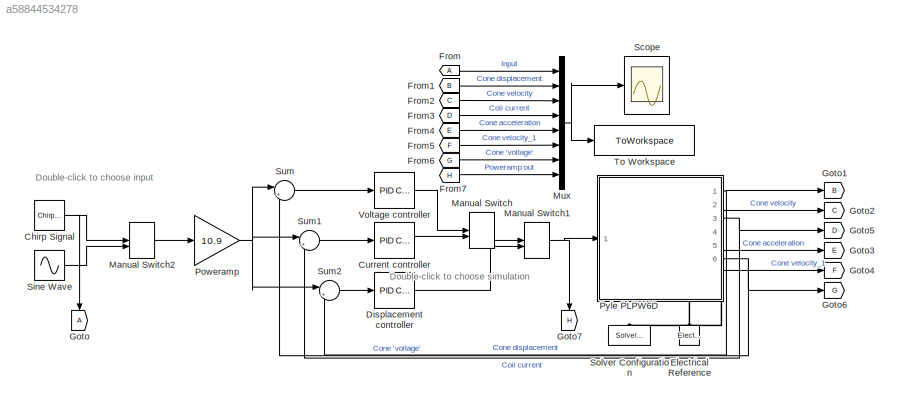
MODEL slx_a58844534278
KIND model
CONFIG AbsTol = auto
CONFIG EnableMultiTasking = off
CONFIG FixedStep = 0.000001
CONFIG MaxStep = auto
CONFIG MinStep = auto
CONFIG RelTol = 1e-3
CONFIG SampleTimeConstraint = Unconstrained
CONFIG Solver = FixedStepAuto
CONFIG SolverName = FixedStepAuto
CONFIG StartTime = 0.0
CONFIG StopTime = 1
BLOCK [Reference] Chirp Signal  REF=simulink/Sources/Chirp Signal
  Ports = [0, 1]
  SourceBlock = simulink/Sources/Chirp Signal
  SourceProductBaseCode = SL
  SourceType = chirp
BLOCK [Reference] Current controller  REF=simulink/Continuous/PID Controller
  Ports = [1, 1]
  SourceBlock = simulink/Continuous/PID Controller
  SourceProductBaseCode = SL
  SourceType = PID 1dof
BLOCK [Reference] Displacement controller  REF=simulink/Continuous/PID Controller
  Ports = [1, 1]
  SourceBlock = simulink/Continuous/PID Controller
  SourceProductBaseCode = SL
  SourceType = PID 1dof
BLOCK [Reference] Electrical Reference  REF=fl_lib/Electrical/Electrical Elements/Electrical Reference
  NameLocation = right
  Ports = [0, 0, 0, 0, 0, 1]
  SourceBlock = fl_lib/Electrical/Electrical Elements/Electrical Reference
  SourceProductBaseCode = MT,SS
  SourceType = Electrical Reference
BLOCK [From] From
BLOCK [From] From1
  GotoTag = B
BLOCK [From] From2
  GotoTag = C
BLOCK [From] From3
  GotoTag = D
BLOCK [From] From4
  GotoTag = E
BLOCK [From] From5
  GotoTag = F
BLOCK [From] From6
  GotoTag = G
BLOCK [From] From7
  GotoTag = H
BLOCK [Goto] Goto
  NameLocation = left
BLOCK [Goto] Goto1
  GotoTag = B
BLOCK [Goto] Goto2
  GotoTag = C
BLOCK [Goto] Goto3
  GotoTag = E
BLOCK [Goto] Goto4
  GotoTag = F
BLOCK [Goto] Goto5
  GotoTag = D
BLOCK [Goto] Goto6
  GotoTag = G
BLOCK [Goto] Goto7
  GotoTag = H
  NameLocation = left
BLOCK [ManualSwitch] Manual Switch
  CurrentSetting = 0
BLOCK [ManualSwitch] Manual Switch1
  CurrentSetting = 0
BLOCK [ManualSwitch] Manual Switch2
BLOCK [Mux] Mux
  DisplayOption = bar
  Inputs = 8
  Ports = [8, 1]
BLOCK [Gain] Poweramp
  Gain = 10.9
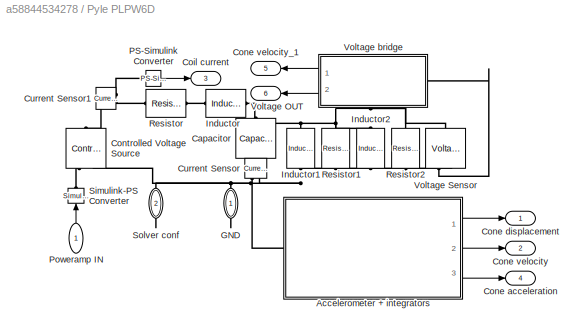
BLOCK [SubSystem] Pyle PLPW6D
  PortSchema = {"entries":[{"content":{"sides":[{"content":{"connectorIds":["In1"]},"type":"ConnectorPlacement.EquallySpacedRectSide","uuid":"55797129-f68c-4c08-9179-5bd73ddaf456"},{"content":{"connectorIds":["Out1","Out2","Out3","Out4","Out5","Out6"],"side":"RIGHT"},"type":"ConnectorPlacement.EquallySpacedRectSide","uuid":"cd82eb0c-b61b-42dc-852e-e59ea1718ce1"},{"content":{"connectorIds":[],"side":"TOP"},"type"...<+438ch>
  Ports = [1, 6, 0, 0, 0, 0, 2]
  RequestExecContextInheritance = off
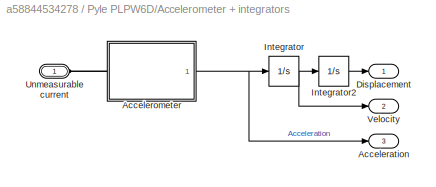
BLOCK [SubSystem] Pyle PLPW6D/Accelerometer + integrators
  Ports = [0, 3, 0, 0, 0, 1]
  RequestExecContextInheritance = off
BLOCK [Outport] Pyle PLPW6D/Accelerometer + integrators/Acceleration
  Port = 3
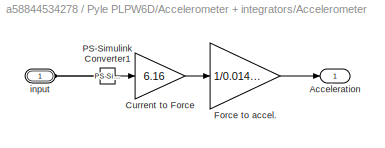
BLOCK [SubSystem] Pyle PLPW6D/Accelerometer + integrators/Accelerometer
  Ports = [0, 1, 0, 0, 0, 1]
  RequestExecContextInheritance = off
BLOCK [Outport] Pyle PLPW6D/Accelerometer + integrators/Accelerometer/Acceleration
BLOCK [Gain] Pyle PLPW6D/Accelerometer + integrators/Accelerometer/Current to Force
  Gain = 6.16
BLOCK [Gain] Pyle PLPW6D/Accelerometer + integrators/Accelerometer/Force to accel.
  Gain = 1/0.01476
BLOCK [Reference] Pyle PLPW6D/Accelerometer + integrators/Accelerometer/PS-Simulink Converter1  REF=nesl_utility/PS-Simulink
Converter
  Ports = [0, 1, 0, 0, 0, 1]
  SourceBlock = nesl_utility/PS-Simulink\nConverter
  SourceProductBaseCode = SS
  SourceType = PS-Simulink\nConverter
BLOCK [PMIOPort] Pyle PLPW6D/Accelerometer + integrators/Accelerometer/input
  Side = Left
BLOCK [Outport] Pyle PLPW6D/Accelerometer + integrators/Displacement
BLOCK [Integrator] Pyle PLPW6D/Accelerometer + integrators/Integrator
  Ports = [1, 1]
BLOCK [Integrator] Pyle PLPW6D/Accelerometer + integrators/Integrator2
  Ports = [1, 1]
BLOCK [PMIOPort] Pyle PLPW6D/Accelerometer + integrators/Unmeasurable current
  Side = Left
BLOCK [Outport] Pyle PLPW6D/Accelerometer + integrators/Velocity
  Port = 2
BLOCK [Reference] Pyle PLPW6D/Capacitor  REF=fl_lib/Electrical/Electrical Elements/Capacitor
  NameLocation = left
  Ports = [0, 0, 0, 0, 0, 1, 1]
  SourceBlock = fl_lib/Electrical/Electrical Elements/Capacitor
  SourceProductBaseCode = SS
  SourceType = Capacitor
BLOCK [Outport] Pyle PLPW6D/Coil current
  Port = 3
BLOCK [Outport] Pyle PLPW6D/Cone acceleration
  Port = 4
BLOCK [Outport] Pyle PLPW6D/Cone displacement
BLOCK [Outport] Pyle PLPW6D/Cone velocity
  Port = 2
BLOCK [Outport] Pyle PLPW6D/Cone velocity_1
  NameLocation = top
  Port = 5
BLOCK [Reference] Pyle PLPW6D/Controlled Voltage Source  REF=fl_lib/Electrical/Electrical Sources/Controlled Voltage
Source
  NameLocation = right
  Ports = [0, 0, 0, 0, 0, 1, 2]
  SourceBlock = fl_lib/Electrical/Electrical Sources/Controlled Voltage\nSource
  SourceProductBaseCode = SS
  SourceType = Controlled Voltage\nSource
BLOCK [Reference] Pyle PLPW6D/Current Sensor  REF=fl_lib/Electrical/Electrical Sensors/Current Sensor
  NameLocation = left
  Ports = [0, 0, 0, 0, 0, 1, 2]
  SourceBlock = fl_lib/Electrical/Electrical Sensors/Current Sensor
  SourceProductBaseCode = SS
  SourceType = Current Sensor
BLOCK [Reference] Pyle PLPW6D/Current Sensor1  REF=fl_lib/Electrical/Electrical Sensors/Current Sensor
  Ports = [0, 0, 0, 0, 0, 1, 2]
  SourceBlock = fl_lib/Electrical/Electrical Sensors/Current Sensor
  SourceProductBaseCode = SS
  SourceType = Current Sensor
BLOCK [PMIOPort] Pyle PLPW6D/GND
  NameLocation = left
  Side = Right
BLOCK [Reference] Pyle PLPW6D/Inductor  REF=fl_lib/Electrical/Electrical Elements/Inductor
  Ports = [0, 0, 0, 0, 0, 1, 1]
  SourceBlock = fl_lib/Electrical/Electrical Elements/Inductor
  SourceProductBaseCode = SS
  SourceType = Inductor
BLOCK [Reference] Pyle PLPW6D/Inductor1  REF=fl_lib/Electrical/Electrical Elements/Inductor
  NameLocation = left
  Ports = [0, 0, 0, 0, 0, 1, 1]
  SourceBlock = fl_lib/Electrical/Electrical Elements/Inductor
  SourceProductBaseCode = SS
  SourceType = Inductor
BLOCK [Reference] Pyle PLPW6D/Inductor2  REF=fl_lib/Electrical/Electrical Elements/Inductor
  NameLocation = left
  Ports = [0, 0, 0, 0, 0, 1, 1]
  SourceBlock = fl_lib/Electrical/Electrical Elements/Inductor
  SourceProductBaseCode = SS
  SourceType = Inductor
BLOCK [Reference] Pyle PLPW6D/PS-Simulink Converter  REF=nesl_utility/PS-Simulink
Converter
  Ports = [0, 1, 0, 0, 0, 1]
  SourceBlock = nesl_utility/PS-Simulink\nConverter
  SourceProductBaseCode = SS
  SourceType = PS-Simulink\nConverter
BLOCK [Inport] Pyle PLPW6D/Poweramp IN
  NameLocation = right
BLOCK [Reference] Pyle PLPW6D/Resistor  REF=fl_lib/Electrical/Electrical Elements/Resistor
  Ports = [0, 0, 0, 0, 0, 1, 1]
  SourceBlock = fl_lib/Electrical/Electrical Elements/Resistor
  SourceProductBaseCode = SS
  SourceType = Resistor
BLOCK [Reference] Pyle PLPW6D/Resistor1  REF=fl_lib/Electrical/Electrical Elements/Resistor
  NameLocation = left
  Ports = [0, 0, 0, 0, 0, 1, 1]
  SourceBlock = fl_lib/Electrical/Electrical Elements/Resistor
  SourceProductBaseCode = SS
  SourceType = Resistor
BLOCK [Reference] Pyle PLPW6D/Resistor2  REF=fl_lib/Electrical/Electrical Elements/Resistor
  NameLocation = left
  Ports = [0, 0, 0, 0, 0, 1, 1]
  SourceBlock = fl_lib/Electrical/Electrical Elements/Resistor
  SourceProductBaseCode = SS
  SourceType = Resistor
BLOCK [Reference] Pyle PLPW6D/Simulink-PS Converter  REF=nesl_utility/Simulink-PS
Converter
  NameLocation = right
  Ports = [1, 0, 0, 0, 0, 0, 1]
  SourceBlock = nesl_utility/Simulink-PS\nConverter
  SourceProductBaseCode = SS
  SourceType = Simulink-PS\nConverter
BLOCK [PMIOPort] Pyle PLPW6D/Solver conf
  NameLocation = left
  Port = 2
  Side = Right
BLOCK [Outport] Pyle PLPW6D/Voltage OUT
  NameLocation = top
  Port = 6
BLOCK [Reference] Pyle PLPW6D/Voltage Sensor  REF=fl_lib/Electrical/Electrical Sensors/Voltage Sensor
  NameLocation = right
  Ports = [0, 0, 0, 0, 0, 1, 2]
  SourceBlock = fl_lib/Electrical/Electrical Sensors/Voltage Sensor
  SourceProductBaseCode = SS
  SourceType = Voltage Sensor
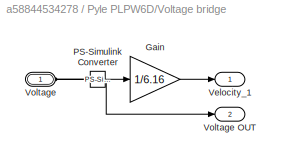
BLOCK [SubSystem] Pyle PLPW6D/Voltage bridge
  NameLocation = top
  Ports = [0, 2, 0, 0, 0, 1]
  RequestExecContextInheritance = off
BLOCK [Gain] Pyle PLPW6D/Voltage bridge/Gain
  Gain = 1/6.16
BLOCK [Reference] Pyle PLPW6D/Voltage bridge/PS-Simulink Converter  REF=nesl_utility/PS-Simulink
Converter
  Ports = [0, 1, 0, 0, 0, 1]
  SourceBlock = nesl_utility/PS-Simulink\nConverter
  SourceProductBaseCode = SS
  SourceType = PS-Simulink\nConverter
BLOCK [Outport] Pyle PLPW6D/Voltage bridge/Velocity_1
BLOCK [PMIOPort] Pyle PLPW6D/Voltage bridge/Voltage
  Side = Left
BLOCK [Outport] Pyle PLPW6D/Voltage bridge/Voltage OUT
  Port = 2
BLOCK [Scope] Scope
  Floating = off
  NumInputPorts = 1
  Ports = [1]
  ScopeSpecificationString = Simulink.scopes.TimeScopeBlockCfg('CurrentConfiguration', extmgr.ConfigurationSet(extmgr.Configuration('Core','General UI',true),extmgr.Configuration('Core','Source UI',true),extmgr.Configuration('Sources','WiredSimulink',true,'DataLogging',true,'DataLoggingVariableName','OpenLoopData','DataLoggingMaxPoints','100000','DataLoggingSaveFormat','StructureWithTime'),extmgr.Configuration('Visuals','Time...<+1834ch>
BLOCK [Sin] Sine Wave
  Frequency = 125
  Ports = [0, 1]
  SampleTime = 0
BLOCK [Reference] Solver Configuration  REF=nesl_utility/Solver
Configuration
  NameLocation = right
  Ports = [0, 0, 0, 0, 0, 0, 1]
  SourceBlock = nesl_utility/Solver\nConfiguration
  SourceProductBaseCode = SS
  SourceType = Solver\nConfiguration
BLOCK [Sum] Sum
  Inputs = |+-
  Ports = [2, 1]
BLOCK [Sum] Sum1
  Inputs = |+-
  Ports = [2, 1]
BLOCK [Sum] Sum2
  Inputs = |+-
  Ports = [2, 1]
BLOCK [ToWorkspace] To Workspace
  FixptAsFi = on
  MaxDataPoints = inf
  Ports = [1]
  SampleTime = -1
  Save2DSignal = 2-D array (concatenate along first dimension)
  VariableName = d_pid
BLOCK [Reference] Voltage controller  REF=simulink/Continuous/PID Controller
  Ports = [1, 1]
  SourceBlock = simulink/Continuous/PID Controller
  SourceProductBaseCode = SL
  SourceType = PID 1dof
ANNOTATION (root): Double-click to choose input
ANNOTATION (root): Double-click to choose simulation
NET Chirp Signal:1 -> Goto:1, Manual Switch2:1
LINE Current controller:1 -> Manual Switch:2
LINE Displacement controller:1 -> Manual Switch1:2
LINE From1:1 -> Mux:2
LINE From2:1 -> Mux:3
LINE From3:1 -> Mux:4
LINE From4:1 -> Mux:5
LINE From5:1 -> Mux:6
LINE From6:1 -> Mux:7
LINE From7:1 -> Mux:8
LINE From:1 -> Mux:1
NET Manual Switch1:1 -> Goto7:1, Pyle PLPW6D:1
LINE Manual Switch2:1 -> Poweramp:1
LINE Manual Switch:1 -> Manual Switch1:1
NET Mux:1 -> Scope:1, To Workspace:1
NET Poweramp:1 -> Sum1:1, Sum2:1, Sum:1
LINE Pyle PLPW6D/Accelerometer + integrators/Accelerometer/Current to Force:1 -> Pyle PLPW6D/Accelerometer + integrators/Accelerometer/Force to accel.:1
LINE Pyle PLPW6D/Accelerometer + integrators/Accelerometer/Force to accel.:1 -> Pyle PLPW6D/Accelerometer + integrators/Accelerometer/Acceleration:1
LINE Pyle PLPW6D/Accelerometer + integrators/Accelerometer/PS-Simulink Converter1:1 -> Pyle PLPW6D/Accelerometer + integrators/Accelerometer/Current to Force:1
NET Pyle PLPW6D/Accelerometer + integrators/Accelerometer:1 -> Pyle PLPW6D/Accelerometer + integrators/Acceleration:1, Pyle PLPW6D/Accelerometer + integrators/Integrator:1
LINE Pyle PLPW6D/Accelerometer + integrators/Integrator2:1 -> Pyle PLPW6D/Accelerometer + integrators/Displacement:1
NET Pyle PLPW6D/Accelerometer + integrators/Integrator:1 -> Pyle PLPW6D/Accelerometer + integrators/Integrator2:1, Pyle PLPW6D/Accelerometer + integrators/Velocity:1
LINE Pyle PLPW6D/Accelerometer + integrators:1 -> Pyle PLPW6D/Cone displacement:1
LINE Pyle PLPW6D/Accelerometer + integrators:2 -> Pyle PLPW6D/Cone velocity:1
LINE Pyle PLPW6D/Accelerometer + integrators:3 -> Pyle PLPW6D/Cone acceleration:1
LINE Pyle PLPW6D/PS-Simulink Converter:1 -> Pyle PLPW6D/Coil current:1
LINE Pyle PLPW6D/Poweramp IN:1 -> Pyle PLPW6D/Simulink-PS Converter:1
LINE Pyle PLPW6D/Voltage bridge/Gain:1 -> Pyle PLPW6D/Voltage bridge/Velocity_1:1
NET Pyle PLPW6D/Voltage bridge/PS-Simulink Converter:1 -> Pyle PLPW6D/Voltage bridge/Gain:1, Pyle PLPW6D/Voltage bridge/Voltage OUT:1
LINE Pyle PLPW6D/Voltage bridge:1 -> Pyle PLPW6D/Cone velocity_1:1
LINE Pyle PLPW6D/Voltage bridge:2 -> Pyle PLPW6D/Voltage OUT:1
NET Pyle PLPW6D:1 -> Goto1:1, Sum2:2
LINE Pyle PLPW6D:2 -> Goto2:1
NET Pyle PLPW6D:3 -> Goto5:1, Sum1:2
LINE Pyle PLPW6D:4 -> Goto3:1
LINE Pyle PLPW6D:5 -> Goto4:1
NET Pyle PLPW6D:6 -> Goto6:1, Sum:2
LINE Sine Wave:1 -> Manual Switch2:2
LINE Sum1:1 -> Current controller:1
LINE Sum2:1 -> Displacement controller:1
LINE Sum:1 -> Voltage controller:1
LINE Voltage controller:1 -> Manual Switch:1
PLINE Electrical Reference:LConn1 -- Pyle PLPW6D:RConn2
PLINE Pyle PLPW6D/Accelerometer + integrators/Accelerometer/PS-Simulink Converter1:LConn1 -- Pyle PLPW6D/Accelerometer + integrators/Accelerometer/input:RConn1
PLINE Pyle PLPW6D/Accelerometer + integrators/Accelerometer:LConn1 -- Pyle PLPW6D/Accelerometer + integrators/Unmeasurable current:RConn1
PLINE Pyle PLPW6D/Accelerometer + integrators:LConn1 -- Pyle PLPW6D/Current Sensor:RConn1
PNET net1: Pyle PLPW6D/Capacitor:LConn1 -- Pyle PLPW6D/Inductor1:LConn1 -- Pyle PLPW6D/Inductor2:LConn1 -- Pyle PLPW6D/Inductor:RConn1 -- Pyle PLPW6D/Resistor1:LConn1 -- Pyle PLPW6D/Resistor2:LConn1 -- Pyle PLPW6D/Voltage Sensor:LConn1
PLINE Pyle PLPW6D/Capacitor:RConn1 -- Pyle PLPW6D/Current Sensor:LConn1
PLINE Pyle PLPW6D/Controlled Voltage Source:LConn1 -- Pyle PLPW6D/Current Sensor1:LConn1
PLINE Pyle PLPW6D/Controlled Voltage Source:RConn1 -- Pyle PLPW6D/Simulink-PS Converter:RConn1
PNET net2: Pyle PLPW6D/Controlled Voltage Source:RConn2 -- Pyle PLPW6D/Current Sensor:RConn2 -- Pyle PLPW6D/GND:RConn1 -- Pyle PLPW6D/Inductor1:RConn1 -- Pyle PLPW6D/Inductor2:RConn1 -- Pyle PLPW6D/Resistor1:RConn1 -- Pyle PLPW6D/Resistor2:RConn1 -- Pyle PLPW6D/Solver conf:RConn1 -- Pyle PLPW6D/Voltage Sensor:RConn2
PLINE Pyle PLPW6D/Current Sensor1:RConn1 -- Pyle PLPW6D/PS-Simulink Converter:LConn1
PLINE Pyle PLPW6D/Current Sensor1:RConn2 -- Pyle PLPW6D/Resistor:LConn1
PLINE Pyle PLPW6D/Inductor:LConn1 -- Pyle PLPW6D/Resistor:RConn1
PLINE Pyle PLPW6D/Voltage Sensor:RConn1 -- Pyle PLPW6D/Voltage bridge:LConn1
PLINE Pyle PLPW6D/Voltage bridge/PS-Simulink Converter:LConn1 -- Pyle PLPW6D/Voltage bridge/Voltage:RConn1
PLINE Pyle PLPW6D:RConn1 -- Solver Configuration:RConn1
note: NET lines group one-source signal fan-out (src -> all destinations, sorted); 1:1 wires keep LINE; PNET lines group multi-terminal physical nets as a canonical sorted terminal list (undirected conserving connections); 2-terminal nets keep the pairwise PLINE form
